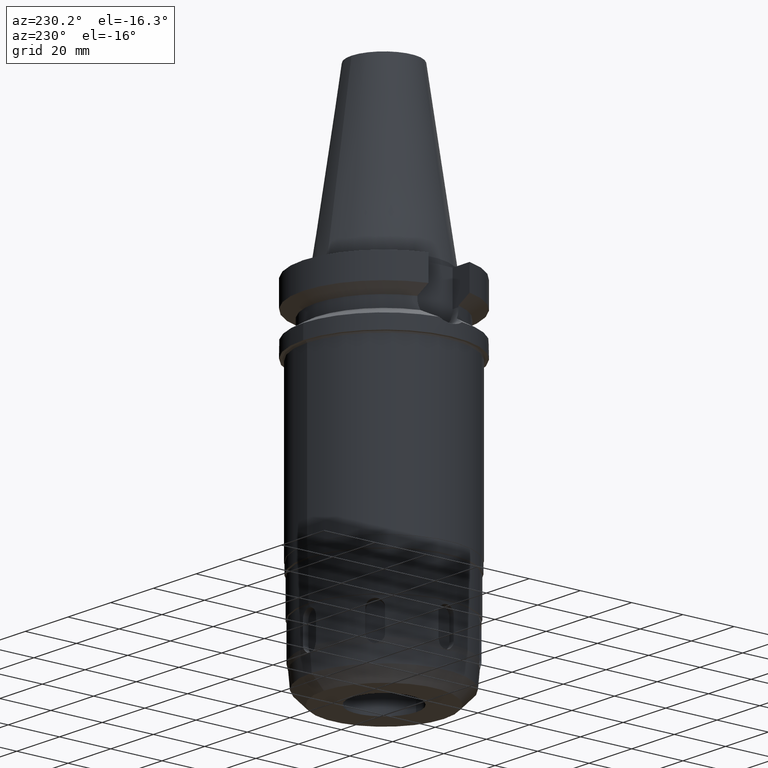
[diagram: clean part render]
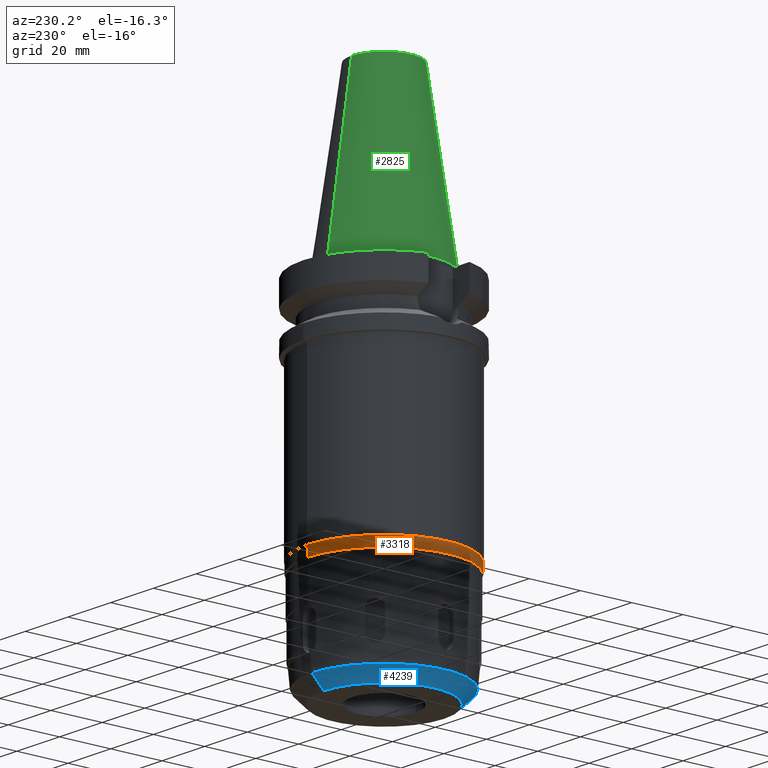
[diagram: same view with three faces highlighted in distinct colors, each labeled with its STEP entity id]
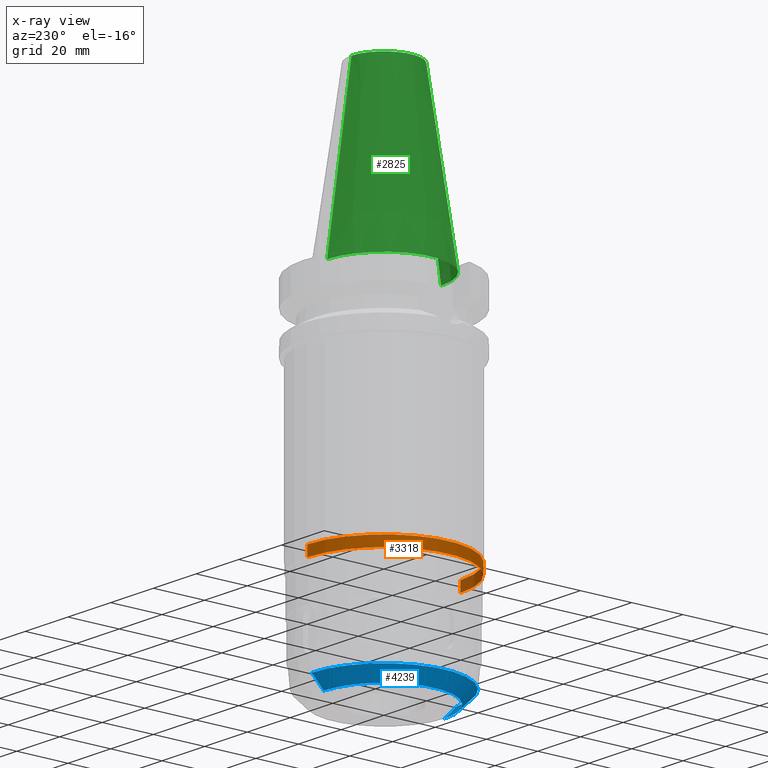
[diagram: x-ray of the same camera — body ghosted, the three highlighted faces saturated]
A machine part, auxiliary view with three faces highlighted in distinct colors.
The next image is the same camera in x-ray (body ghosted, the three faces saturated) — at least one of them is partly hidden behind the body in this view.
Their STEP definitions:

[orange] entity #3318 — the highlighted cylindrical surface (partial cylindrical patch) has radius 29.85 mm, axis along (0, 0, -1).
#718=CARTESIAN_POINT('',(0.E0,2.148275415064E-14,-9.05E1));
#719=DIRECTION('',(0.E0,0.E0,-1.E0));
#720=DIRECTION('',(0.E0,-1.E0,0.E0));
#721=AXIS2_PLACEMENT_3D('',#718,#719,#720);
#734=DIRECTION('',(0.E0,0.E0,-1.E0));
#735=VECTOR('',#734,4.E0);
#736=CARTESIAN_POINT('',(0.E0,-2.985E1,-9.05E1));
#737=LINE('',#736,#735);
#741=DIRECTION('',(0.E0,0.E0,-1.E0));
#742=VECTOR('',#741,4.E0);
#743=CARTESIAN_POINT('',(0.E0,2.985E1,-9.05E1));
#744=LINE('',#743,#742);
#771=CARTESIAN_POINT('',(0.E0,0.E0,-9.45E1));
#772=DIRECTION('',(0.E0,0.E0,1.E0));
#773=DIRECTION('',(0.E0,1.E0,0.E0));
#774=AXIS2_PLACEMENT_3D('',#771,#772,#773);
#2618=CARTESIAN_POINT('',(0.E0,2.985E1,-9.45E1));
#2619=VERTEX_POINT('',#2618);
#2620=CARTESIAN_POINT('',(0.E0,-2.985E1,-9.45E1));
#2621=VERTEX_POINT('',#2620);
#2622=CARTESIAN_POINT('',(0.E0,2.985E1,-9.05E1));
#2623=VERTEX_POINT('',#2622);
#2624=CARTESIAN_POINT('',(0.E0,-2.985E1,-9.05E1));
#2625=VERTEX_POINT('',#2624);
#3304=CARTESIAN_POINT('',(0.E0,2.148275415064E-14,7.542E1));
#3305=DIRECTION('',(0.E0,0.E0,-1.E0));
#3306=DIRECTION('',(0.E0,-1.E0,0.E0));
#3307=AXIS2_PLACEMENT_3D('',#3304,#3305,#3306);
#3308=CYLINDRICAL_SURFACE('',#3307,2.985E1);
#3310=ORIENTED_EDGE('',*,*,#3309,.F.);
#3311=ORIENTED_EDGE('',*,*,#3297,.F.);
#3313=ORIENTED_EDGE('',*,*,#3312,.T.);
#3315=ORIENTED_EDGE('',*,*,#3314,.F.);
#3316=EDGE_LOOP('',(#3310,#3311,#3313,#3315));
#3317=FACE_OUTER_BOUND('',#3316,.F.);
#722=CIRCLE('',#721,2.985E1);
#775=CIRCLE('',#774,2.985E1);
#3297=EDGE_CURVE('',#2625,#2623,#722,.T.);
#3309=EDGE_CURVE('',#2623,#2619,#744,.T.);
#3312=EDGE_CURVE('',#2625,#2621,#737,.T.);
#3314=EDGE_CURVE('',#2619,#2621,#775,.T.);
#3318=ADVANCED_FACE('',(#3317),#3308,.T.);

[blue] entity #4239 — the highlighted conical surface has half-angle 45 deg.
#2136=CARTESIAN_POINT('',(0.E0,0.E0,-1.30285E2));
#2137=DIRECTION('',(0.E0,0.E0,-1.E0));
#2138=DIRECTION('',(0.E0,-1.E0,0.E0));
#2139=AXIS2_PLACEMENT_3D('',#2136,#2137,#2138);
#2144=DIRECTION('',(0.E0,7.071067811867E-1,-7.071067811864E-1));
#2145=VECTOR('',#2144,6.668016946590E0);
#2146=CARTESIAN_POINT('',(0.E0,-2.8215E1,-1.30285E2));
#2147=LINE('',#2146,#2145);
#2151=DIRECTION('',(0.E0,-7.071067811867E-1,-7.071067811864E-1));
#2152=VECTOR('',#2151,6.668016946590E0);
#2153=CARTESIAN_POINT('',(0.E0,2.8215E1,-1.30285E2));
#2154=LINE('',#2153,#2152);
#2174=CARTESIAN_POINT('',(0.E0,0.E0,-1.35E2));
#2175=DIRECTION('',(0.E0,0.E0,1.E0));
#2176=DIRECTION('',(0.E0,1.E0,0.E0));
#2177=AXIS2_PLACEMENT_3D('',#2174,#2175,#2176);
#2486=CARTESIAN_POINT('',(0.E0,-2.35E1,-1.35E2));
#2487=CARTESIAN_POINT('',(0.E0,2.35E1,-1.35E2));
#2488=VERTEX_POINT('',#2486);
#2489=VERTEX_POINT('',#2487);
#2490=CARTESIAN_POINT('',(0.E0,2.8215E1,-1.30285E2));
#2491=VERTEX_POINT('',#2490);
#2492=CARTESIAN_POINT('',(0.E0,-2.8215E1,-1.30285E2));
#2493=VERTEX_POINT('',#2492);
#4225=CARTESIAN_POINT('',(0.E0,0.E0,-1.326425E2));
#4226=DIRECTION('',(0.E0,0.E0,1.E0));
#4227=DIRECTION('',(0.E0,1.E0,0.E0));
#4228=AXIS2_PLACEMENT_3D('',#4225,#4226,#4227);
#4229=CONICAL_SURFACE('',#4228,2.58575E1,4.5E1);
#4231=ORIENTED_EDGE('',*,*,#4230,.F.);
#4232=ORIENTED_EDGE('',*,*,#4220,.F.);
#4234=ORIENTED_EDGE('',*,*,#4233,.T.);
#4236=ORIENTED_EDGE('',*,*,#4235,.F.);
#4237=EDGE_LOOP('',(#4231,#4232,#4234,#4236));
#4238=FACE_OUTER_BOUND('',#4237,.F.);
#2140=CIRCLE('',#2139,2.8215E1);
#2178=CIRCLE('',#2177,2.35E1);
#4220=EDGE_CURVE('',#2493,#2491,#2140,.T.);
#4230=EDGE_CURVE('',#2491,#2489,#2154,.T.);
#4233=EDGE_CURVE('',#2493,#2488,#2147,.T.);
#4235=EDGE_CURVE('',#2489,#2488,#2178,.T.);
#4239=ADVANCED_FACE('',(#4238),#4229,.T.);

[green] entity #2825 — the highlighted conical surface has half-angle 8.297 deg.
#17=CARTESIAN_POINT('',(0.E0,1.625106302469E-14,6.54E1));
#18=DIRECTION('',(0.E0,0.E0,-1.E0));
#19=DIRECTION('',(0.E0,-1.E0,0.E0));
#20=AXIS2_PLACEMENT_3D('',#17,#18,#19);
#50=DIRECTION('',(0.E0,-1.443043893540E-1,-9.895333461856E-1));
#51=VECTOR('',#50,6.609175956738E1);
#52=CARTESIAN_POINT('',(0.E0,-1.268766899430E1,6.54E1));
#53=LINE('',#52,#51);
#57=CARTESIAN_POINT('',(0.E0,1.625106302469E-14,2.842170943040E-14));
#58=DIRECTION('',(0.E0,0.E0,-1.E0));
#59=DIRECTION('',(0.E0,-1.E0,0.E0));
#60=AXIS2_PLACEMENT_3D('',#57,#58,#59);
#65=DIRECTION('',(0.E0,1.443043893540E-1,-9.895333461856E-1));
#66=VECTOR('',#65,6.609175956738E1);
#67=CARTESIAN_POINT('',(0.E0,1.268766899430E1,6.54E1));
#68=LINE('',#67,#66);
#2442=CARTESIAN_POINT('',(0.E0,-1.268766899430E1,6.54E1));
#2443=CARTESIAN_POINT('',(0.E0,1.268766899430E1,6.54E1));
#2444=VERTEX_POINT('',#2442);
#2445=VERTEX_POINT('',#2443);
#2715=CARTESIAN_POINT('',(0.E0,2.2225E1,6.394884621841E-14));
#2716=VERTEX_POINT('',#2715);
#2717=CARTESIAN_POINT('',(0.E0,-2.2225E1,6.394884621841E-14));
#2718=VERTEX_POINT('',#2717);
#2811=CARTESIAN_POINT('',(0.E0,1.625106302469E-14,3.27E1));
#2812=DIRECTION('',(0.E0,0.E0,-1.E0));
#2813=DIRECTION('',(0.E0,-1.E0,0.E0));
#2814=AXIS2_PLACEMENT_3D('',#2811,#2812,#2813);
#2815=CONICAL_SURFACE('',#2814,1.745633449715E1,8.297E0);
#2817=ORIENTED_EDGE('',*,*,#2816,.F.);
#2818=ORIENTED_EDGE('',*,*,#2798,.F.);
#2820=ORIENTED_EDGE('',*,*,#2819,.T.);
#2822=ORIENTED_EDGE('',*,*,#2821,.T.);
#2823=EDGE_LOOP('',(#2817,#2818,#2820,#2822));
#2824=FACE_OUTER_BOUND('',#2823,.F.);
#21=CIRCLE('',#20,1.268766899430E1);
#61=CIRCLE('',#60,2.2225E1);
#2798=EDGE_CURVE('',#2444,#2445,#21,.T.);
#2816=EDGE_CURVE('',#2445,#2716,#68,.T.);
#2819=EDGE_CURVE('',#2444,#2718,#53,.T.);
#2821=EDGE_CURVE('',#2718,#2716,#61,.T.);
#2825=ADVANCED_FACE('',(#2824),#2815,.T.);